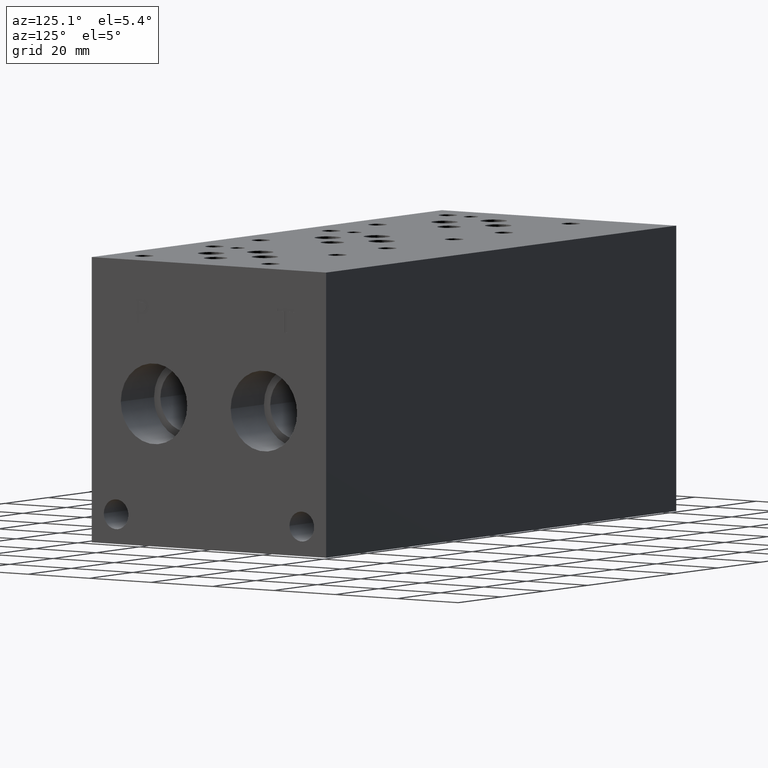
[diagram: clean part render]
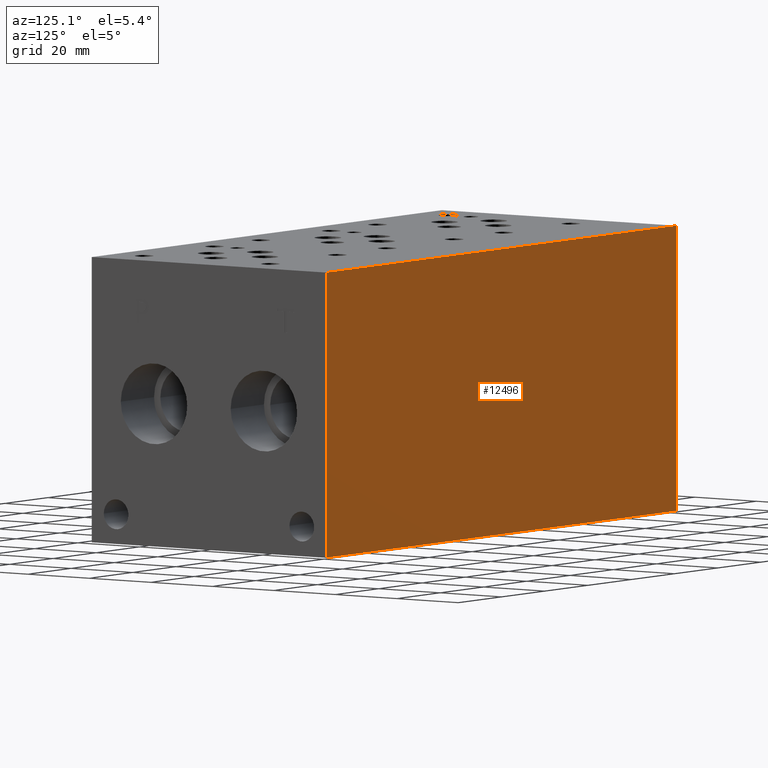
[diagram: same view with one face highlighted and labeled with its STEP entity id]
A machine part, auxiliary view. The second image highlights one B-rep face of the part: STEP entity #12496.
In plain terms, the highlighted planar face has unit normal (0, 1, 0).
Its self-contained STEP definition (entity closure, byte-faithful):
#865=PLANE('',#13250);
#1507=FACE_OUTER_BOUND('',#2238,.T.);
#2238=EDGE_LOOP('',(#11144,#11145,#11146,#11147));
#2303=LINE('',#16078,#3437);
#2365=LINE('',#16356,#3499);
#3402=LINE('',#21545,#4536);
#3403=LINE('',#21546,#4537);
#3437=VECTOR('',#13310,10.);
#3499=VECTOR('',#13426,10.);
#4536=VECTOR('',#15861,10.);
#4537=VECTOR('',#15862,10.);
#4897=VERTEX_POINT('',#16075);
#4898=VERTEX_POINT('',#16077);
#4956=VERTEX_POINT('',#16349);
#4959=VERTEX_POINT('',#16354);
#6110=EDGE_CURVE('',#4897,#4898,#2303,.T.);
#6196=EDGE_CURVE('',#4956,#4959,#2365,.T.);
#7780=EDGE_CURVE('',#4897,#4956,#3402,.T.);
#7781=EDGE_CURVE('',#4898,#4959,#3403,.T.);
#11144=ORIENTED_EDGE('',*,*,#7780,.T.);
#11145=ORIENTED_EDGE('',*,*,#6196,.T.);
#11146=ORIENTED_EDGE('',*,*,#7781,.F.);
#11147=ORIENTED_EDGE('',*,*,#6110,.F.);
#12496=ADVANCED_FACE('',(#1507),#865,.T.);
#13250=AXIS2_PLACEMENT_3D('',#21544,#15859,#15860);
#13310=DIRECTION('',(0.,0.,1.));
#13426=DIRECTION('',(0.,0.,1.));
#15859=DIRECTION('center_axis',(0.,1.,0.));
#15860=DIRECTION('ref_axis',(-1.,0.,0.));
#15861=DIRECTION('',(-1.,0.,0.));
#15862=DIRECTION('',(-1.,0.,0.));
#16075=CARTESIAN_POINT('',(161.925,76.2,0.));
#16077=CARTESIAN_POINT('',(161.925,76.2,76.2));
#16078=CARTESIAN_POINT('',(161.925,76.2,0.));
#16349=CARTESIAN_POINT('',(0.,76.2,0.));
#16354=CARTESIAN_POINT('',(0.,76.2,76.2));
#16356=CARTESIAN_POINT('',(0.,76.2,0.));
#21544=CARTESIAN_POINT('Origin',(161.925,76.2,0.));
#21545=CARTESIAN_POINT('',(161.925,76.2,0.));
#21546=CARTESIAN_POINT('',(161.925,76.2,76.2));